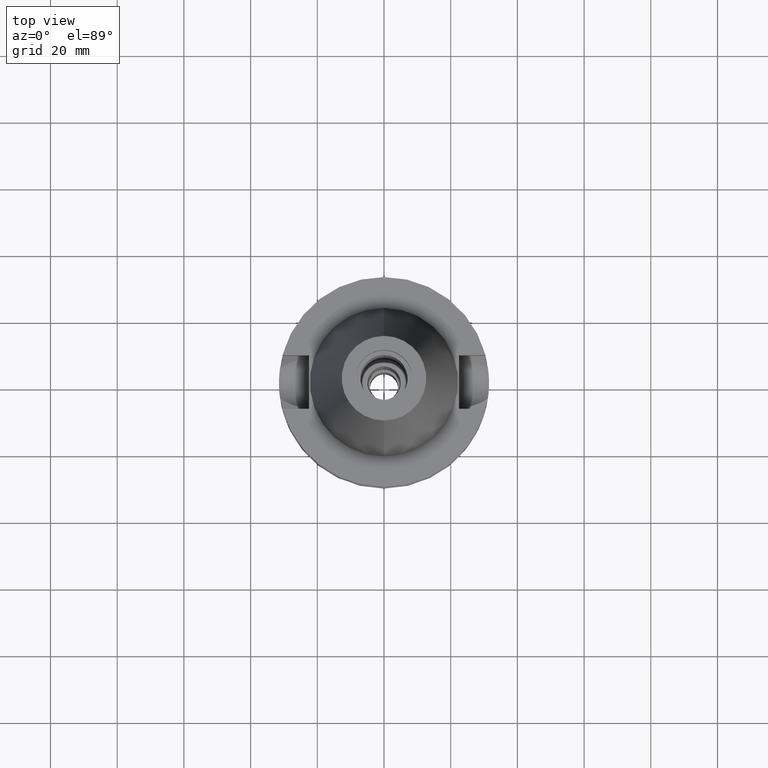
[diagram: clean part render]
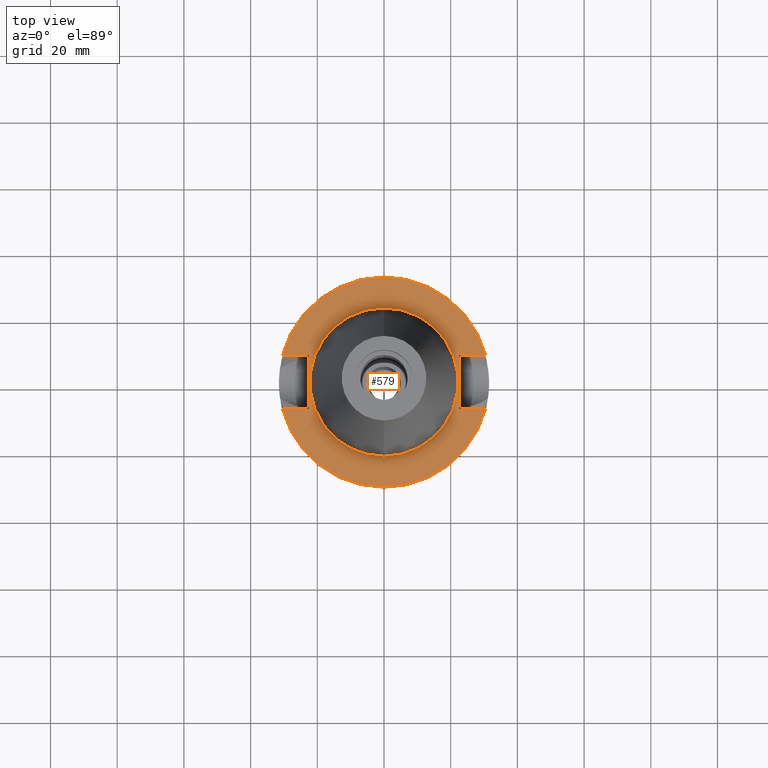
[diagram: same view with one face highlighted and labeled with its STEP entity id]
A machine part, top view. The second image highlights one B-rep face of the part: STEP entity #579.
In plain terms, the highlighted planar face has unit normal (0, 0, -1).
Its self-contained STEP definition (entity closure, byte-faithful):
#77 = VERTEX_POINT ( 'NONE', #2959 ) ;
#137 = EDGE_LOOP ( 'NONE', ( #3179, #829, #1437, #222, #2313, #1234, #2280, #1309 ) ) ;
#143 = ORIENTED_EDGE ( 'NONE', *, *, #1567, .F. ) ;
#169 = CARTESIAN_POINT ( 'NONE',  ( 0.0000000000000000000, -22.22500000000000142, -2.000000000000000000 ) ) ;
#222 = ORIENTED_EDGE ( 'NONE', *, *, #2080, .F. ) ;
#227 = DIRECTION ( 'NONE',  ( 0.0000000000000000000, 1.000000000000000000, 0.0000000000000000000 ) ) ;
#277 = DIRECTION ( 'NONE',  ( 0.0000000000000000000, -1.000000000000000000, 0.0000000000000000000 ) ) ;
#407 = AXIS2_PLACEMENT_3D ( 'NONE', #1515, #944, #663 ) ;
#460 = AXIS2_PLACEMENT_3D ( 'NONE', #2083, #2635, #2958 ) ;
#463 = LINE ( 'NONE', #1592, #1415 ) ;
#537 = CARTESIAN_POINT ( 'NONE',  ( 0.0000000000000000000, 2.144601474666999952E-14, -2.000000000000000000 ) ) ;
#579 = ADVANCED_FACE ( 'NONE', ( #1725, #1003 ), #674, .F. ) ;
#663 = DIRECTION ( 'NONE',  ( 0.0000000000000000000, -1.000000000000000000, 0.0000000000000000000 ) ) ;
#674 = PLANE ( 'NONE',  #460 ) ;
#680 = CIRCLE ( 'NONE', #3209, 22.22500000000000142 ) ;
#762 = CARTESIAN_POINT ( 'NONE',  ( -22.50000000000000000, -8.050000000000000711, -2.000000000000000000 ) ) ;
#799 = EDGE_CURVE ( 'NONE', #77, #3000, #3273, .T. ) ;
#801 = LINE ( 'NONE', #830, #2287 ) ;
#806 = LINE ( 'NONE', #2484, #2285 ) ;
#824 = VERTEX_POINT ( 'NONE', #1620 ) ;
#826 = DIRECTION ( 'NONE',  ( 0.0000000000000000000, 0.0000000000000000000, 1.000000000000000000 ) ) ;
#829 = ORIENTED_EDGE ( 'NONE', *, *, #799, .F. ) ;
#830 = CARTESIAN_POINT ( 'NONE',  ( -22.50000000000000000, -8.050000000000000711, -2.000000000000000000 ) ) ;
#926 = VECTOR ( 'NONE', #1431, 1000.000000000000000 ) ;
#944 = DIRECTION ( 'NONE',  ( 0.0000000000000000000, 0.0000000000000000000, 1.000000000000000000 ) ) ;
#1003 = FACE_BOUND ( 'NONE', #2705, .T. ) ;
#1026 = VECTOR ( 'NONE', #1613, 1000.000000000000000 ) ;
#1058 = CARTESIAN_POINT ( 'NONE',  ( 0.0000000000000000000, 2.144601474666999952E-14, -2.000000000000000000 ) ) ;
#1088 = CARTESIAN_POINT ( 'NONE',  ( 22.50000000000000000, -8.050000000000000711, -2.000000000000000000 ) ) ;
#1234 = ORIENTED_EDGE ( 'NONE', *, *, #3563, .F. ) ;
#1291 = EDGE_CURVE ( 'NONE', #1591, #3258, #463, .T. ) ;
#1309 = ORIENTED_EDGE ( 'NONE', *, *, #2966, .F. ) ;
#1316 = DIRECTION ( 'NONE',  ( 0.0000000000000000000, 1.000000000000000000, 0.0000000000000000000 ) ) ;
#1351 = VERTEX_POINT ( 'NONE', #2863 ) ;
#1371 = VERTEX_POINT ( 'NONE', #3413 ) ;
#1382 = DIRECTION ( 'NONE',  ( 0.0000000000000000000, 0.0000000000000000000, -1.000000000000000000 ) ) ;
#1393 = ORIENTED_EDGE ( 'NONE', *, *, #1880, .F. ) ;
#1415 = VECTOR ( 'NONE', #2738, 1000.000000000000000 ) ;
#1431 = DIRECTION ( 'NONE',  ( 1.000000000000000000, 3.573249715389999860E-14, 0.0000000000000000000 ) ) ;
#1437 = ORIENTED_EDGE ( 'NONE', *, *, #3024, .F. ) ;
#1440 = DIRECTION ( 'NONE',  ( 0.0000000000000000000, 1.000000000000000000, 0.0000000000000000000 ) ) ;
#1515 = CARTESIAN_POINT ( 'NONE',  ( 0.0000000000000000000, 2.144601474666999952E-14, -2.000000000000000000 ) ) ;
#1567 = EDGE_CURVE ( 'NONE', #2756, #824, #3582, .T. ) ;
#1591 = VERTEX_POINT ( 'NONE', #2424 ) ;
#1592 = CARTESIAN_POINT ( 'NONE',  ( -22.50000000000000000, 8.050000000000000711, -2.000000000000000000 ) ) ;
#1613 = DIRECTION ( 'NONE',  ( -1.000000000000000000, 3.550916904668000126E-14, 0.0000000000000000000 ) ) ;
#1620 = CARTESIAN_POINT ( 'NONE',  ( 0.0000000000000000000, 22.22500000000000142, -2.000000000000000000 ) ) ;
#1669 = LINE ( 'NONE', #1088, #926 ) ;
#1708 = AXIS2_PLACEMENT_3D ( 'NONE', #537, #1382, #277 ) ;
#1725 = FACE_OUTER_BOUND ( 'NONE', #137, .T. ) ;
#1880 = EDGE_CURVE ( 'NONE', #824, #2756, #680, .T. ) ;
#1936 = CIRCLE ( 'NONE', #2827, 31.50000000000000000 ) ;
#2015 = EDGE_CURVE ( 'NONE', #3229, #3000, #2165, .T. ) ;
#2031 = DIRECTION ( 'NONE',  ( 0.0000000000000000000, -1.000000000000000000, 0.0000000000000000000 ) ) ;
#2050 = CARTESIAN_POINT ( 'NONE',  ( 22.50000000000000000, -8.050000000000000711, -2.000000000000000000 ) ) ;
#2077 = CARTESIAN_POINT ( 'NONE',  ( -30.45402272279000044, 8.050000000000000711, -2.000000000000000000 ) ) ;
#2080 = EDGE_CURVE ( 'NONE', #1371, #2139, #3430, .T. ) ;
#2083 = CARTESIAN_POINT ( 'NONE',  ( 0.0000000000000000000, 1.200153863163999924E-14, -2.000000000000000000 ) ) ;
#2139 = VERTEX_POINT ( 'NONE', #2050 ) ;
#2165 = LINE ( 'NONE', #762, #1026 ) ;
#2251 = CARTESIAN_POINT ( 'NONE',  ( -30.45402272279000044, -8.050000000000000711, -2.000000000000000000 ) ) ;
#2280 = ORIENTED_EDGE ( 'NONE', *, *, #1291, .F. ) ;
#2285 = VECTOR ( 'NONE', #3353, 1000.000000000000000 ) ;
#2287 = VECTOR ( 'NONE', #1316, 1000.000000000000000 ) ;
#2303 = CARTESIAN_POINT ( 'NONE',  ( 0.0000000000000000000, 2.144601474666999952E-14, -2.000000000000000000 ) ) ;
#2313 = ORIENTED_EDGE ( 'NONE', *, *, #2373, .T. ) ;
#2373 = EDGE_CURVE ( 'NONE', #1371, #1351, #806, .T. ) ;
#2408 = CARTESIAN_POINT ( 'NONE',  ( -22.50000000000000000, -8.050000000000000711, -2.000000000000000000 ) ) ;
#2424 = CARTESIAN_POINT ( 'NONE',  ( -22.50000000000000000, 8.050000000000000711, -2.000000000000000000 ) ) ;
#2484 = CARTESIAN_POINT ( 'NONE',  ( 22.50000000000000000, 8.050000000000000711, -2.000000000000000000 ) ) ;
#2619 = CARTESIAN_POINT ( 'NONE',  ( 22.50000000000000000, 8.050000000000000711, -2.000000000000000000 ) ) ;
#2628 = VECTOR ( 'NONE', #2031, 1000.000000000000000 ) ;
#2635 = DIRECTION ( 'NONE',  ( 0.0000000000000000000, 0.0000000000000000000, -1.000000000000000000 ) ) ;
#2705 = EDGE_LOOP ( 'NONE', ( #1393, #143 ) ) ;
#2738 = DIRECTION ( 'NONE',  ( -1.000000000000000000, -3.550916904668000126E-14, 0.0000000000000000000 ) ) ;
#2756 = VERTEX_POINT ( 'NONE', #169 ) ;
#2827 = AXIS2_PLACEMENT_3D ( 'NONE', #2303, #2856, #1440 ) ;
#2856 = DIRECTION ( 'NONE',  ( 0.0000000000000000000, 0.0000000000000000000, -1.000000000000000000 ) ) ;
#2863 = CARTESIAN_POINT ( 'NONE',  ( 30.45402272279000044, 8.050000000000000711, -2.000000000000000000 ) ) ;
#2958 = DIRECTION ( 'NONE',  ( 0.0000000000000000000, -1.000000000000000000, 0.0000000000000000000 ) ) ;
#2959 = CARTESIAN_POINT ( 'NONE',  ( 30.45402272279000044, -8.050000000000000711, -2.000000000000000000 ) ) ;
#2966 = EDGE_CURVE ( 'NONE', #3229, #1591, #801, .T. ) ;
#3000 = VERTEX_POINT ( 'NONE', #2251 ) ;
#3024 = EDGE_CURVE ( 'NONE', #2139, #77, #1669, .T. ) ;
#3179 = ORIENTED_EDGE ( 'NONE', *, *, #2015, .T. ) ;
#3209 = AXIS2_PLACEMENT_3D ( 'NONE', #1058, #826, #227 ) ;
#3229 = VERTEX_POINT ( 'NONE', #2408 ) ;
#3258 = VERTEX_POINT ( 'NONE', #2077 ) ;
#3273 = CIRCLE ( 'NONE', #1708, 31.50000000000000000 ) ;
#3353 = DIRECTION ( 'NONE',  ( 1.000000000000000000, -3.506251283225999947E-14, 0.0000000000000000000 ) ) ;
#3413 = CARTESIAN_POINT ( 'NONE',  ( 22.50000000000000000, 8.050000000000000711, -2.000000000000000000 ) ) ;
#3430 = LINE ( 'NONE', #2619, #2628 ) ;
#3563 = EDGE_CURVE ( 'NONE', #3258, #1351, #1936, .T. ) ;
#3582 = CIRCLE ( 'NONE', #407, 22.22500000000000142 ) ;